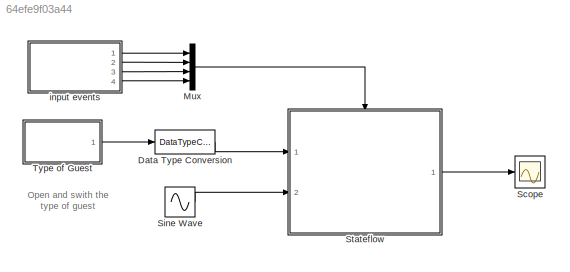
MODEL slx_64efe9f03a44
KIND model
BLOCK [DataTypeConversion] Data Type Conversion
  OutDataTypeStr = int8
  RndMeth = Floor
  SaturateOnIntegerOverflow = off
BLOCK [Mux] Mux
  DisplayOption = bar
  Ports = [4, 1]
BLOCK [Scope] Scope
  DataFormat = StructureWithTime
  Floating = off
  NumInputPorts = 1
  Ports = [1]
  SampleTime = 0
  ShowLegends = off
  TimeRange = 10
  YMax = 4
  YMin = -4
BLOCK [Sin] Sine Wave
  Amplitude = 2
  Frequency = 10
  Ports = [0, 1]
  SampleTime = 0.1
  Samples = 20
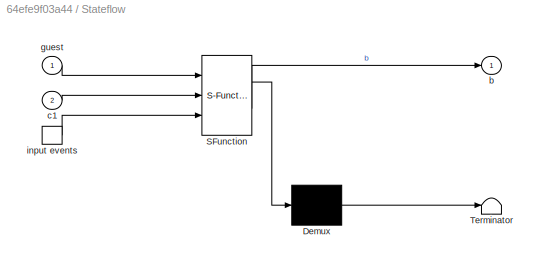
BLOCK [SubSystem] Stateflow
  ErrorFcn = Stateflow.Translate.translate
  FunctionWithSeparateData = off
  MaskHideContents = off
  MinAlgLoopOccurrences = off
  Opaque = off
  PermitHierarchicalResolution = ParametersOnly
  Ports = [2, 1, 0, 1]
  PropExecContextOutsideSubsystem = off
  RTWSystemCode = Auto
  RequestExecContextInheritance = off
  SFBlockType = Chart
  TreatAsAtomicUnit = on
BLOCK [Demux] Stateflow/ Demux 
  Outputs = 1
  Ports = [1, 1]
BLOCK [S-Function] Stateflow/ SFunction 
  EnableBusSupport = off
  FunctionName = sf_sfun
  PortCounts = [3 2]
  Ports = [3, 2]
  Tag = Stateflow S-Function model02_2013a 1
BLOCK [Terminator] Stateflow/ Terminator 
BLOCK [TriggerPort] Stateflow/ input events 
  Ports = [0, 1]
  ShowOutputPort = on
BLOCK [Outport] Stateflow/b
  IconDisplay = Port number
BLOCK [Inport] Stateflow/c1
  IconDisplay = Port number
  Port = 2
BLOCK [Inport] Stateflow/guest
  IconDisplay = Port number
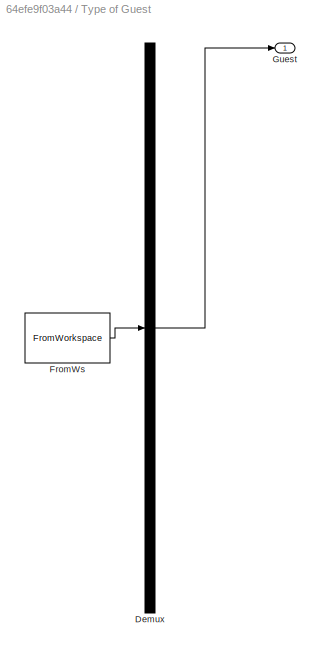
BLOCK [SubSystem] Type of Guest
  ClipboardFcn = sigbuilder_block('clipboard');
  CloseFcn = sigbuilder_block('close');
  ContinueFcn = sigbuilder_block('continue')
  CopyFcn = sigbuilder_block('copy');
  DeleteFcn = sigbuilder_block('delete');
  FunctionWithSeparateData = off
  LoadFcn = sigbuilder_block('load');
  MaskHideContents = on
  MinAlgLoopOccurrences = off
  ModelCloseFcn = sigbuilder_block('modelClose');
  NameChangeFcn = sigbuilder_block('namechange');
  Opaque = off
  OpenFcn = sigbuilder_block('open',[147.75 115.5 550.5 360 ]);
  PauseFcn = sigbuilder_block('pause')
  Ports = [0, 1]
  PreSaveFcn = sigbuilder_block('preSave');
  PropExecContextOutsideSubsystem = off
  RTWSystemCode = Auto
  RequestExecContextInheritance = off
  StartFcn = sigbuilder_block('start');
  StopFcn = sigbuilder_block('stop');
  Tag = STV Subsys
BLOCK [Demux] Type of Guest/Demux
  Outputs = 1
  Ports = [1, 1]
  Tag = STV Demux
BLOCK [FromWorkspace] Type of Guest/FromWs
  SampleTime = 0
  Tag = STV FromWs
  VariableName = tuvar
  ZeroCross = on
BLOCK [Outport] Type of Guest/Guest
  IconDisplay = Port number
  Tag = STV Outport
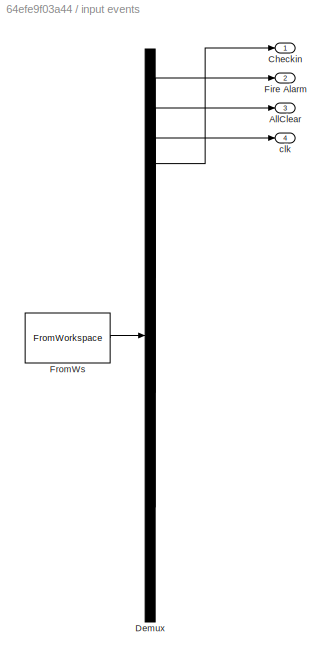
BLOCK [SubSystem] input events
  ClipboardFcn = sigbuilder_block('clipboard');
  CloseFcn = sigbuilder_block('close');
  ContinueFcn = sigbuilder_block('continue')
  CopyFcn = sigbuilder_block('copy');
  DeleteFcn = sigbuilder_block('delete');
  FunctionWithSeparateData = off
  LoadFcn = sigbuilder_block('load');
  MaskHideContents = on
  MinAlgLoopOccurrences = off
  ModelCloseFcn = sigbuilder_block('modelClose');
  NameChangeFcn = sigbuilder_block('namechange');
  Opaque = off
  OpenFcn = sigbuilder_block('open',[121.5 125.25 549.75 360 ]);
  PauseFcn = sigbuilder_block('pause')
  Ports = [0, 4]
  PreSaveFcn = sigbuilder_block('preSave');
  PropExecContextOutsideSubsystem = off
  RTWSystemCode = Auto
  RequestExecContextInheritance = off
  StartFcn = sigbuilder_block('start');
  StopFcn = sigbuilder_block('stop');
  Tag = STV Subsys
BLOCK [Outport] input events/AllClear
  IconDisplay = Port number
  Port = 3
  Tag = STV Outport
BLOCK [Outport] input events/Checkin
  IconDisplay = Port number
  Tag = STV Outport
BLOCK [Demux] input events/Demux
  Ports = [1, 4]
  Tag = STV Demux
BLOCK [Outport] input events/Fire Alarm
  IconDisplay = Port number
  Port = 2
  Tag = STV Outport
BLOCK [FromWorkspace] input events/FromWs
  SampleTime = 0
  Tag = STV FromWs
  VariableName = tuvar
  ZeroCross = on
BLOCK [Outport] input events/clk
  IconDisplay = Port number
  Port = 4
  Tag = STV Outport
ANNOTATION (root): Open and swith the type of guest
LINE Data Type Conversion:1 -> Stateflow:1
LINE Mux:1 -> Stateflow:trigger
LINE Sine Wave:1 -> Stateflow:2
LINE Stateflow:1 -> Scope:1
LINE Type of Guest/Demux:1 -> Type of Guest/Guest:1
LINE Type of Guest/FromWs:1 -> Type of Guest/Demux:1
LINE Type of Guest:1 -> Data Type Conversion:1
LINE input events/Demux:1 -> input events/Checkin:1
LINE input events/Demux:2 -> input events/Fire Alarm:1
LINE input events/Demux:3 -> input events/AllClear:1
LINE input events/Demux:4 -> input events/clk:1
LINE input events/FromWs:1 -> input events/Demux:1
LINE input events:1 -> Mux:1
LINE input events:2 -> Mux:2
LINE input events:3 -> Mux:3
LINE input events:4 -> Mux:4
